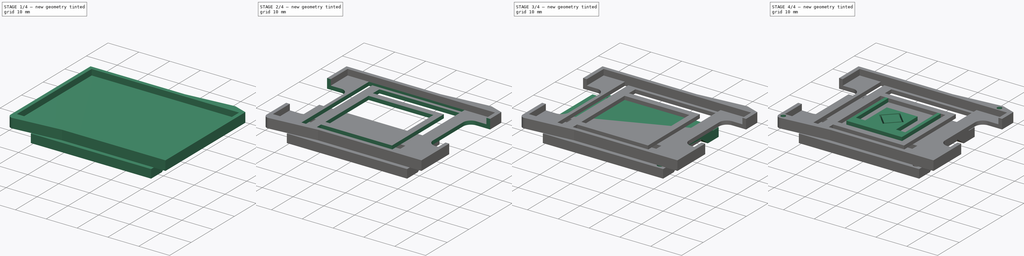
[diagram: build sequence overview — one tinted view per stage of 4, left to right]
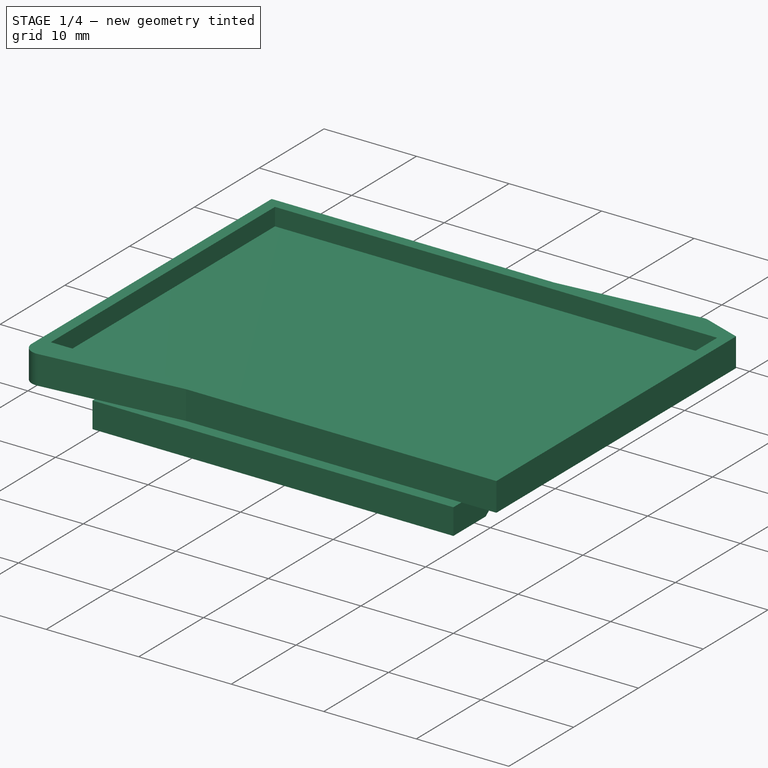
[diagram: stage 1 of 4 — iso view after this stage's code; geometry added in this stage tinted green]
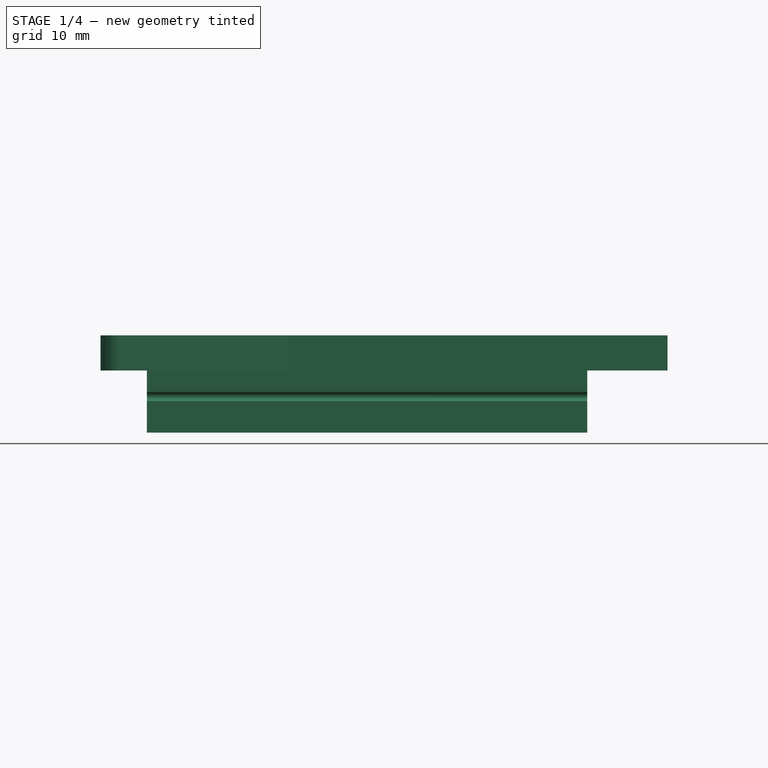
[diagram: stage 1 of 4 — front view after this stage's code; geometry added in this stage tinted green]
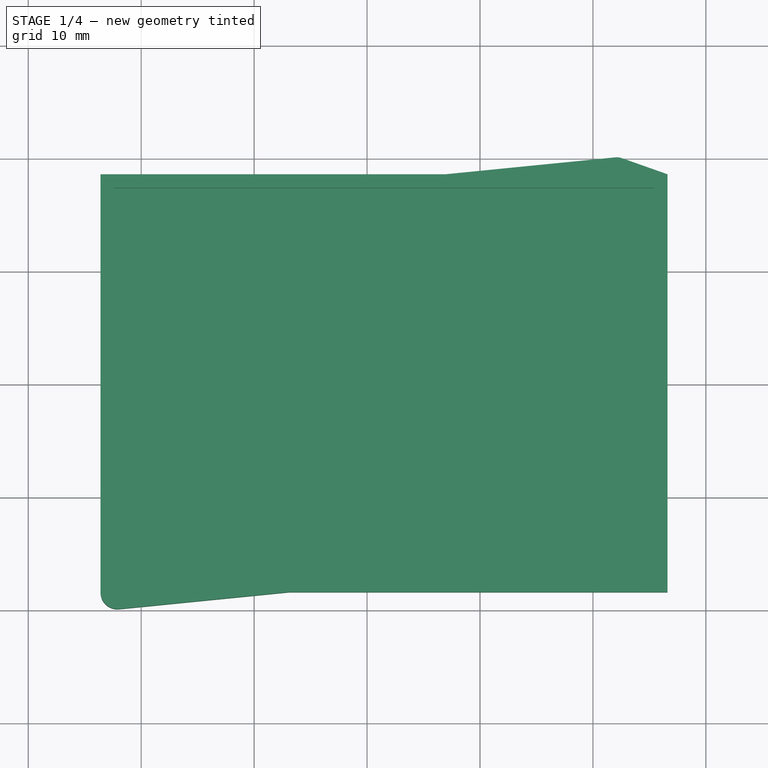
[diagram: stage 1 of 4 — top view after this stage's code; geometry added in this stage tinted green]
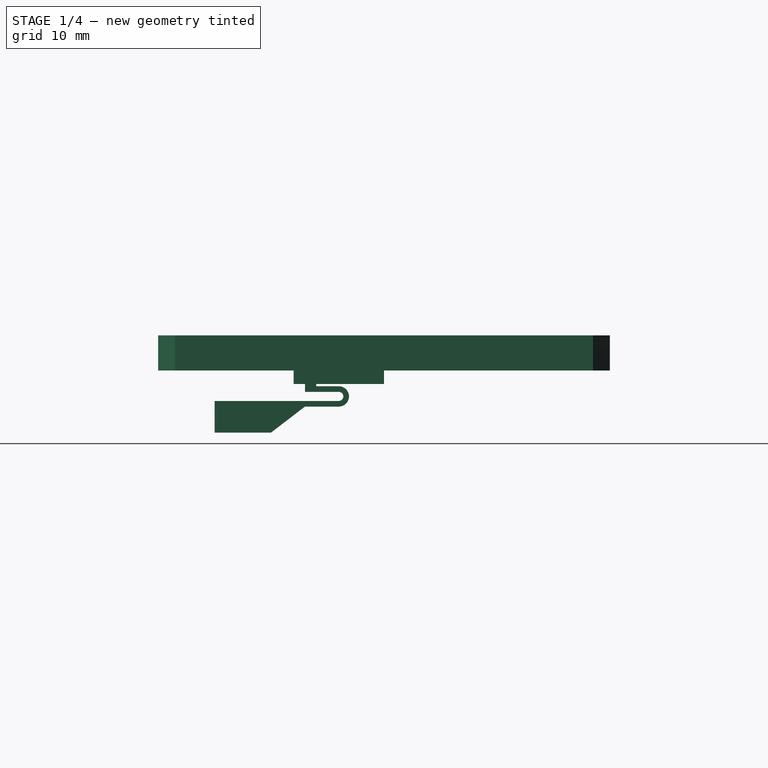
[diagram: stage 1 of 4 — right view after this stage's code; geometry added in this stage tinted green]
FCSTD DOCUMENT  (FreeCAD 0.21R33668 +26 (Git))
Label: PLASTIC-TEK1-DISPLAY-INTERFACE_v2
License: All rights reserved
LicenseURL: https://en.wikipedia.org/wiki/All_rights_reserved
objects: Sketcher::SketchObject×12, PartDesign::Pad×6, PartDesign::Pocket×5, PartDesign::Plane×3, PartDesign::Body×2, PartDesign::Mirrored×1
note: 40 computed .brp shape members not serialized (recipe doc carries the construction recipe); baked Part::Feature solids carry a one-line shape summary decoded from their .brp

FEATURE [PartDesign::Plane] DatumPlane002
  AttachmentOffset = pos=(0,0,5.5) rot=(0,0,1;0rad)
  Length = 61.7587
  MapMode = 5
  Placement = pos=(0,0,5.5) rot=(0,0,1;0rad)
  ResizeMode = 0
  Support = -> [XY_Plane001]
  Width = 60.1587
FEATURE [Sketcher::SketchObject] Sketch005
  FullyConstrained = true
  MapMode = 5
  Placement = pos=(0,0,5.5) rot=(0,0,1;0rad)
  Support = -> [DatumPlane002]
  sketch-geometry (5):
    g0: LineSegment StartX=-15.5 StartY=-17.3 StartZ=0 EndX=-15.5 EndY=17.3 EndZ=0
    g1: LineSegment StartX=-15.5 StartY=17.3 StartZ=0 EndX=15.5 EndY=17.3 EndZ=0
    g2: LineSegment StartX=15.5 StartY=17.3 StartZ=0 EndX=15.5 EndY=-17.3 EndZ=0
    g3: LineSegment StartX=15.5 StartY=-17.3 StartZ=0 EndX=-15.5 EndY=-17.3 EndZ=0
    g4: GeomPoint X=0 Y=0 Z=0
  constraints (12):
    c: Coincident(g0,g1)
    c: Coincident(g1,g2)
    c: Coincident(g2,g3)
    c: Coincident(g3,g0)
    c: Horizontal(g1)
    c: Horizontal(g3)
    c: Vertical(g0)
    c: Vertical(g2)
    c: Symmetric(g1,g0,g4)
    c: Coincident(g4,g-1)
    c: DistanceX(g1,g1) = 31
    c: DistanceY(g2,g2) = 34.6
FEATURE [Sketcher::SketchObject] Sketch007
  FullyConstrained = true
  MapMode = 5
  Placement = pos=(0,0,5.5) rot=(0,0,1;0rad)
  Support = -> [DatumPlane002]
  sketch-geometry (10):
    g0: LineSegment StartX=-23.6 StartY=-18.5 StartZ=0 EndX=-23.6 EndY=18.5 EndZ=0
    g1: LineSegment StartX=-23.6 StartY=18.5 StartZ=0 EndX=26.6 EndY=18.5 EndZ=0
    g2: LineSegment StartX=26.6 StartY=18.5 StartZ=0 EndX=26.6 EndY=-18.5 EndZ=0
    g3: LineSegment StartX=26.6 StartY=-18.5 StartZ=0 EndX=-23.6 EndY=-18.5 EndZ=0
    g4: GeomPoint X=1.5 Y=0 Z=0
    g5: LineSegment StartX=-20.4 StartY=-15.3 StartZ=0 EndX=-20.4 EndY=15.3 EndZ=0
    g6: LineSegment StartX=-20.4 StartY=15.3 StartZ=0 EndX=20.4 EndY=15.3 EndZ=0
    g7: LineSegment StartX=20.4 StartY=15.3 StartZ=0 EndX=20.4 EndY=-15.3 EndZ=0
    g8: LineSegment StartX=20.4 StartY=-15.3 StartZ=0 EndX=-20.4 EndY=-15.3 EndZ=0
    g9: GeomPoint X=0 Y=0 Z=0
  constraints (25):
    c: Coincident(g0,g1)
    c: Coincident(g1,g2)
    c: Coincident(g2,g3)
    c: Coincident(g3,g0)
    c: Horizontal(g1)
    c: Horizontal(g3)
    c: Vertical(g0)
    c: Vertical(g2)
    c: Symmetric(g1,g0,g4)
    c: PointOnObject(g4,g-1)
    c: DistanceX(g1,g1) = 50.2
    c: DistanceY(g0,g0) = 37
    c: Coincident(g5,g6)
    c: Coincident(g6,g7)
    c: Coincident(g7,g8)
    c: Coincident(g8,g5)
    c: Horizontal(g6)
    c: Horizontal(g8)
    c: Vertical(g5)
    c: Vertical(g7)
    c: Symmetric(g6,g5,g9)
    c: DistanceX(g6,g6) = 40.8
    c: DistanceY(g7,g7) = 30.6
    c: Coincident(g9,g-1)
    c: DistanceX(g0,g9) = 23.6
FEATURE [PartDesign::Pad] Pad005
  Direction = (0,0,1)
  Length = 1.2
  Length2 = 10
  Placement = pos=(0,0,5.5) rot=(0,0,1;0rad)
  Profile = -> Sketch007
  ReferenceAxis = -> Sketch007 [N_Axis]
  Type = 0
FEATURE [Sketcher::SketchObject] Sketch008
  FullyConstrained = true
  MapMode = 5
  Placement = pos=(0,0,5.5) rot=(0,0,1;0rad)
  Support = -> [DatumPlane002]
  sketch-geometry (17):
    g0: LineSegment StartX=-22.4 StartY=-17.3 StartZ=0 EndX=-22.4 EndY=17.3 EndZ=0
    g1: LineSegment StartX=-22.4 StartY=17.3 StartZ=0 EndX=25.4 EndY=17.3 EndZ=0
    g2: LineSegment StartX=25.4 StartY=17.3 StartZ=0 EndX=25.4 EndY=-17.3 EndZ=0
    g3: LineSegment StartX=25.4 StartY=-17.3 StartZ=0 EndX=-22.4 EndY=-17.3 EndZ=0
    g4: GeomPoint X=1.5 Y=0 Z=0
    g5: LineSegment StartX=-23.6 StartY=-18.5 StartZ=0 EndX=-23.6 EndY=18.5 EndZ=0
    g6: LineSegment StartX=-23.6 StartY=18.5 StartZ=0 EndX=6.95147 EndY=18.5 EndZ=0
    g7: LineSegment StartX=26.6 StartY=18.5 StartZ=0 EndX=26.6 EndY=-18.5 EndZ=0
    g8: LineSegment StartX=26.6 StartY=-18.5 StartZ=0 EndX=-6.95147 EndY=-18.5 EndZ=0
    g9: GeomPoint X=1.5 Y=0 Z=0
    g10: ArcOfCircle CenterX=-22.1 CenterY=-18.5 CenterZ=0 NormalX=0 NormalY=0 NormalZ=1 AngleXU=0 Radius=1.5 StartAngle=3.14159 EndAngle=4.81157
    g11: LineSegment StartX=-21.9515 StartY=-19.9926 StartZ=0 EndX=-6.95147 EndY=-18.5 EndZ=0
    g12: Circle CenterX=-22.1 CenterY=-18.5 CenterZ=0 NormalX=0 NormalY=0 NormalZ=1 AngleXU=0 Radius=0.75
    g13: Circle CenterX=22.1 CenterY=18.5 CenterZ=0 NormalX=0 NormalY=0 NormalZ=1 AngleXU=0 Radius=0.75
    g14: LineSegment StartX=21.9515 StartY=19.9926 StartZ=0 EndX=6.95147 EndY=18.5 EndZ=0
    g15: LineSegment StartX=22.6 StartY=19.9142 StartZ=0 EndX=26.6 EndY=18.5 EndZ=0
    g16: ArcOfCircle CenterX=22.1 CenterY=18.5 CenterZ=0 NormalX=0 NormalY=0 NormalZ=1 AngleXU=0 Radius=1.5 StartAngle=1.23096 EndAngle=1.66998
  constraints (42):
    c: Coincident(g0,g1)
    c: Coincident(g1,g2)
    c: Coincident(g2,g3)
    c: Coincident(g3,g0)
    c: Horizontal(g1)
    c: Horizontal(g3)
    c: Vertical(g0)
    c: Vertical(g2)
    c: Symmetric(g1,g0,g4)
    c: PointOnObject(g4,g-1)
    c: DistanceX(g0,g-1) = 22.4
    c: DistanceY(g0,g0) = 34.6
    c: DistanceX(g1,g1) = 47.8
    c: Coincident(g5,g6)
    c: Coincident(g7,g8)
    c: Horizontal(g6)
    c: Horizontal(g8)
    c: Vertical(g5)
    c: Coincident(g9,g4)
    c: DistanceX(g5,g0) = 1.2
    c: DistanceY(g5,g0) = 1.2
    c: Diameter(g10) = 3
    c: DistanceX(g11,g11) = 15
    c: Tangent(g10,g11) = -1.5708
    c: Coincident(g8,g11)
    c: Equal(g7,g5)
    c: Coincident(g12,g10)
    c: Diameter(g12) = 1.5
    c: Tangent(g10,g5) = 1.5708
    c: DistanceY(g7,g7) = 37
    c: DistanceX(g5,g7) = 50.2
    c: Symmetric(g7,g7,g-1)
    c: DistanceX(g-1,g13) = 22.1
    c: Equal(g13,g12)
    c: DistanceY(g1,g13) = 1.2
    c: Equal(g14,g11)
    c: Parallel(g14,g11)
    c: Coincident(g6,g14)
    c: Coincident(g15,g7)
    c: Tangent(g16,g15) = 1.5708
    c: Tangent(g16,g14) = -1.5708
    c: Coincident(g16,g13)
FEATURE [PartDesign::Pad] Pad006
  BaseFeature = -> Pad005
  Direction = (0,0,1)
  Length = 3.1
  Length2 = 10
  Placement = pos=(0,0,5.5) rot=(0,0,1;0rad)
  Profile = -> Sketch008
  ReferenceAxis = -> Sketch008 [N_Axis]
  Refine = true
  Type = 0
FEATURE [PartDesign::Body] Body001  label="PLASTIC-TEK1-DISPLAY-INTERFACE_top_part"
  Group = -> [DatumPlane002,Sketch005,Sketch007,Pad005,Sketch008,Pad006,Sketch009,Pocket001,Pocket002,Pad,Sketch023,DatumPlane,Sketch013,Sketch020,Pad015,Pocket]
  Origin = -> Origin001
  Tip = -> Pocket
FEATURE [PartDesign::Pad] Pad016
  Direction = (1,-2e-16,3e-16)
  Length = 39
  Length2 = 10
  Midplane = true
  Placement = pos=(0,0,0) rot=(1,1,1;2.0944rad)
  Profile = -> Sketch021
  ReferenceAxis = -> Sketch021 [N_Axis]
  Refine = true
  Type = 0
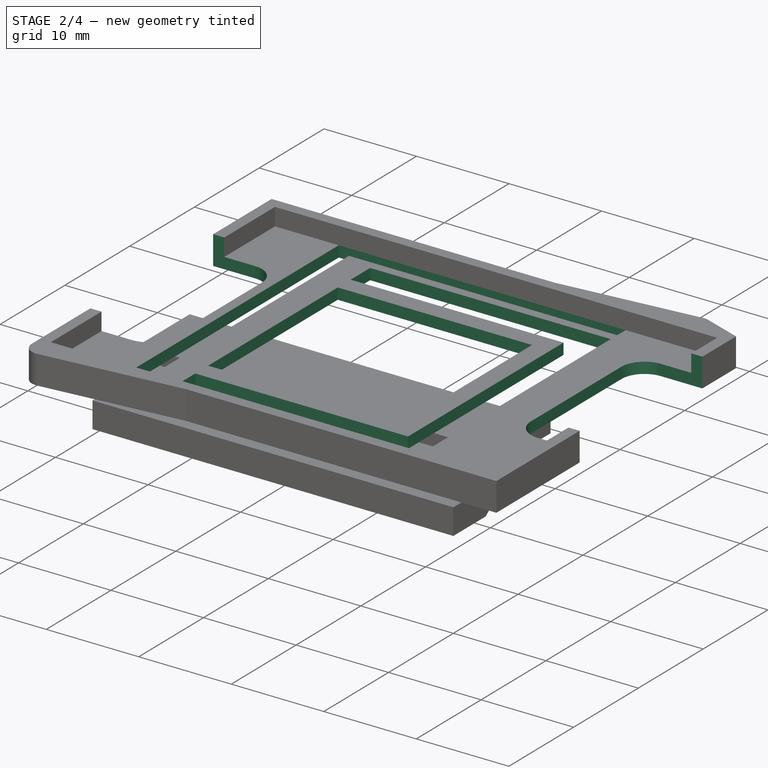
[diagram: stage 2 of 4 — iso view after this stage's code; geometry added in this stage tinted green]
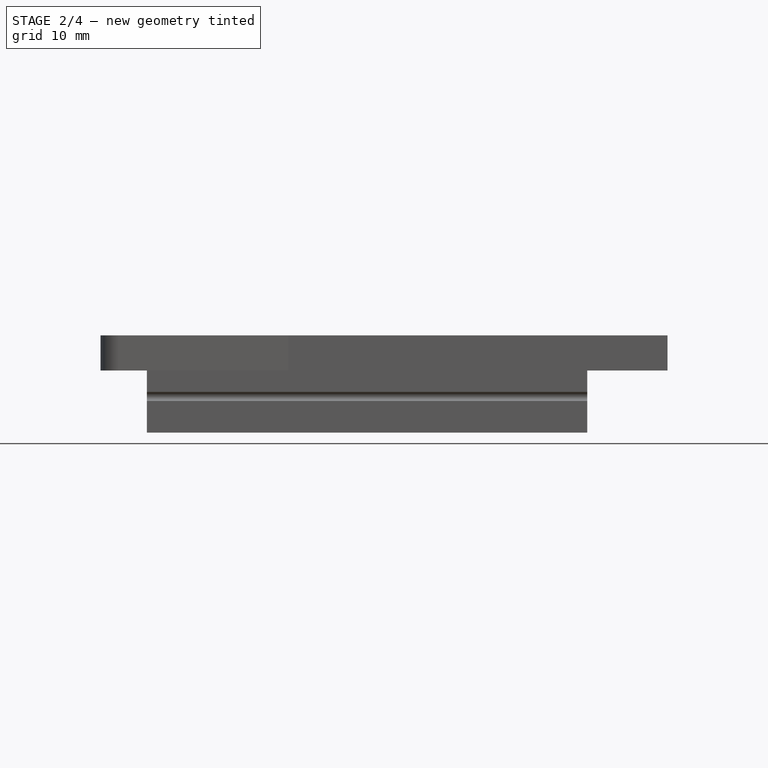
[diagram: stage 2 of 4 — front view after this stage's code; geometry added in this stage tinted green]
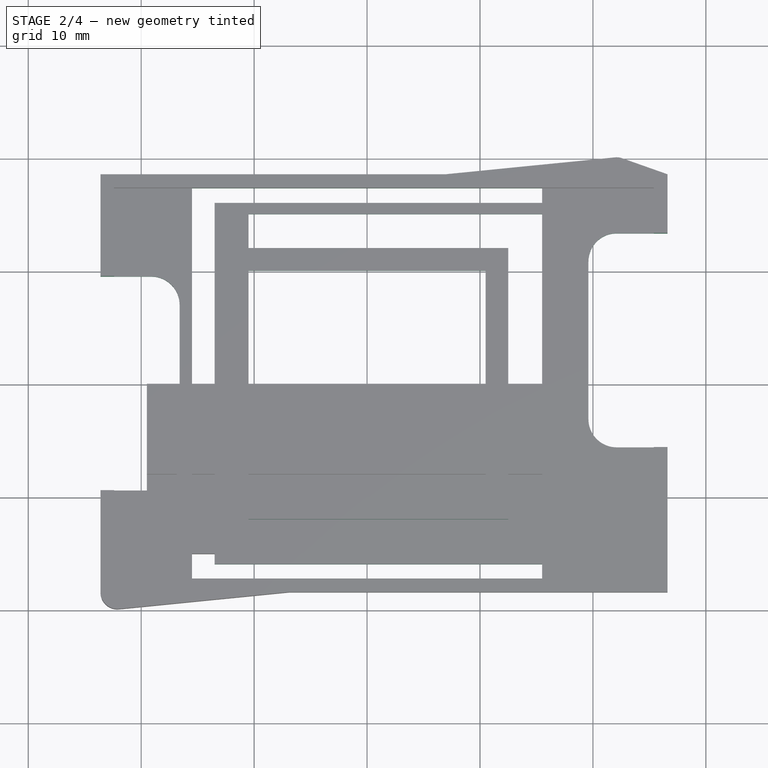
[diagram: stage 2 of 4 — top view after this stage's code; geometry added in this stage tinted green]
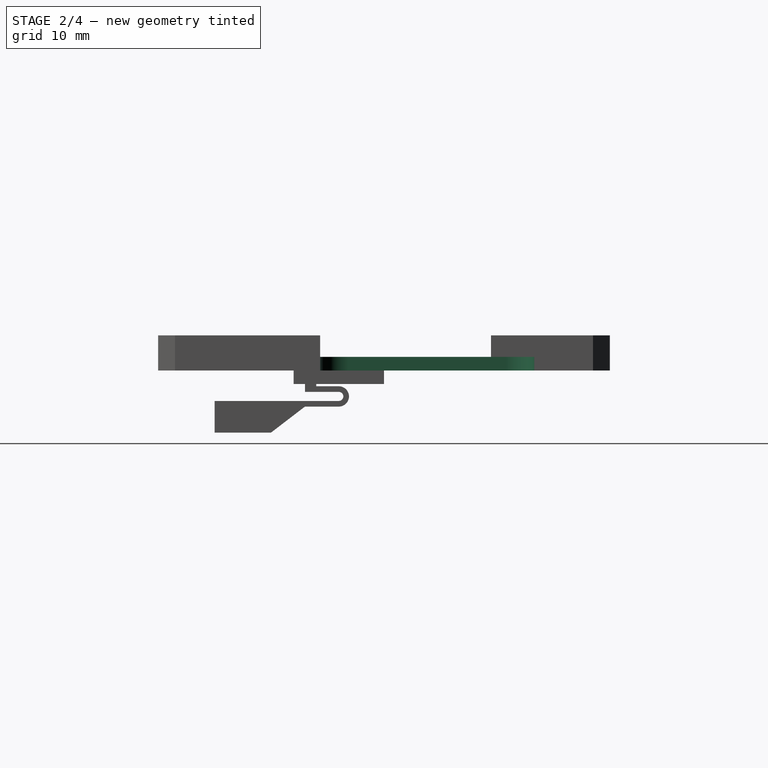
[diagram: stage 2 of 4 — right view after this stage's code; geometry added in this stage tinted green]
FEATURE [Sketcher::SketchObject] Sketch009
  FullyConstrained = true
  MapMode = 5
  Placement = pos=(0,0,5.5) rot=(0,0,1;0rad)
  Support = -> [DatumPlane002]
  sketch-geometry (13):
    g0: LineSegment StartX=19.6 StartY=-3.15 StartZ=0 EndX=19.6 EndY=10.8 EndZ=0
    g1: LineSegment StartX=22.1 StartY=13.3 StartZ=0 EndX=26.6 EndY=13.3 EndZ=0
    g2: LineSegment StartX=26.6 StartY=13.3 StartZ=0 EndX=26.6 EndY=-5.65 EndZ=0
    g3: LineSegment StartX=26.6 StartY=-5.65 StartZ=0 EndX=22.1 EndY=-5.65 EndZ=0
    g4: GeomPoint X=26.6 Y=17.3 Z=0
    g5: ArcOfCircle CenterX=22.1 CenterY=-3.15 CenterZ=0 NormalX=0 NormalY=0 NormalZ=1 AngleXU=0 Radius=2.5 StartAngle=3.14159 EndAngle=4.71239
    g6: ArcOfCircle CenterX=22.1 CenterY=10.8 CenterZ=0 NormalX=0 NormalY=0 NormalZ=1 AngleXU=0 Radius=2.5 StartAngle=1.5708 EndAngle=3.14159
    g7: LineSegment StartX=-23.6 StartY=9.475 StartZ=0 EndX=-19.1 EndY=9.475 EndZ=0
    g8: LineSegment StartX=-16.6 StartY=6.975 StartZ=0 EndX=-16.6 EndY=-6.975 EndZ=0
    g9: LineSegment StartX=-19.1 StartY=-9.475 StartZ=0 EndX=-23.6 EndY=-9.475 EndZ=0
    g10: LineSegment StartX=-23.6 StartY=-9.475 StartZ=0 EndX=-23.6 EndY=9.475 EndZ=0
    g11: ArcOfCircle CenterX=-19.1 CenterY=6.975 CenterZ=0 NormalX=0 NormalY=0 NormalZ=1 AngleXU=0 Radius=2.5 StartAngle=0 EndAngle=1.5708
    g12: ArcOfCircle CenterX=-19.1 CenterY=-6.975 CenterZ=0 NormalX=0 NormalY=0 NormalZ=1 AngleXU=0 Radius=2.5 StartAngle=4.71239 EndAngle=6.28319
  constraints (33):
    c: Coincident(g1,g2)
    c: Coincident(g2,g3)
    c: Horizontal(g1)
    c: Horizontal(g3)
    c: Vertical(g0)
    c: Vertical(g2)
    c: DistanceX(g-1,g4) = 26.6
    c: DistanceY(g-1,g4) = 17.3
    c: DistanceY(g1,g4) = 4
    c: Vertical(g1,g4)
    c: Tangent(g0,g5) = 1.5708
    c: Tangent(g3,g5) = 1.5708
    c: Tangent(g0,g6) = 1.5708
    c: Tangent(g1,g6) = 1.5708
    c: DistanceY(g3,g-1) = 5.65
    c: Equal(g5,g6)
    c: DistanceX(g0,g2) = 7
    c: Diameter(g5) = 5
    c: Coincident(g9,g10)
    c: Coincident(g10,g7)
    c: Horizontal(g7)
    c: Horizontal(g9)
    c: Vertical(g8)
    c: DistanceX(g9,g-1) = 23.6
    c: Symmetric(g9,g7,g-1)
    c: Tangent(g7,g11) = 1.5708
    c: Tangent(g8,g11) = 1.5708
    c: Tangent(g8,g12) = 1.5708
    c: Tangent(g9,g12) = 1.5708
    c: Equal(g11,g12)
    c: Diameter(g11) = 5
    c: DistanceX(g7,g8) = 7
    c: DistanceY(g10,g10) = 18.95
FEATURE [PartDesign::Pocket] Pocket001
  BaseFeature = -> Pad006
  Direction = (0,0,-1)
  Length = 5
  Length2 = 5
  Placement = pos=(0,0,5.5) rot=(0,0,1;0rad)
  Profile = -> Sketch009
  ReferenceAxis = -> Sketch009 [N_Axis]
  Reversed = true
  Type = 1
FEATURE [PartDesign::Pocket] Pocket002
  BaseFeature = -> Pocket001
  Direction = (0,0,-1)
  Length = 5
  Length2 = 5
  Placement = pos=(0,0,5.5) rot=(0,0,1;0rad)
  Profile = -> Sketch005
  ReferenceAxis = -> Sketch005 [N_Axis]
  Reversed = true
  Type = 0
FEATURE [PartDesign::Plane] DatumPlane
  AttachmentOffset = pos=(0,0,8.1) rot=(0,0,1;0rad)
  Length = 61.7587
  MapMode = 5
  Placement = pos=(0,0,8.1) rot=(0,0,1;0rad)
  ResizeMode = 0
  Support = -> [XY_Plane001]
  Width = 60.1587
FEATURE [Sketcher::SketchObject] Sketch013
  FullyConstrained = true
  MapMode = 5
  Placement = pos=(0,0,8.1) rot=(0,0,1;0rad)
  Support = -> [DatumPlane]
  sketch-geometry (4):
    g0: Circle CenterX=22.1 CenterY=18.5 CenterZ=0 NormalX=0 NormalY=0 NormalZ=1 AngleXU=0 Radius=0.75
    g1: Circle CenterX=-22.1 CenterY=-18.5 CenterZ=0 NormalX=0 NormalY=0 NormalZ=1 AngleXU=0 Radius=0.75
    g2: LineSegment StartX=-22.1 StartY=-18.5 StartZ=0 EndX=-22.1 EndY=0 EndZ=0
    g3: LineSegment StartX=22.1 StartY=18.5 StartZ=0 EndX=22.1 EndY=0 EndZ=0
  constraints (12):
    c: Diameter(g0) = 1.5
    c: Equal(g1,g0)
    c: Coincident(g2,g1)
    c: PointOnObject(g2,g-1)
    c: Vertical(g2)
    c: Coincident(g3,g0)
    c: PointOnObject(g3,g-1)
    c: Vertical(g3)
    c: Equal(g2,g3)
    c: DistanceY(g3,g3) = 18.5
    c: DistanceX(g-1,g3) = 22.1
    c: DistanceX(g2,g-1) = 22.1
FEATURE [PartDesign::Plane] DatumPlane003
  AttachmentOffset = pos=(0,0,5.5) rot=(0,0,1;0rad)
  Length = 60
  MapMode = 5
  Placement = pos=(0,0,5.5) rot=(0,0,1;0rad)
  ResizeMode = 0
  Support = -> [XY_Plane002]
  Width = 60
FEATURE [Sketcher::SketchObject] Sketch015
  FullyConstrained = true
  MapMode = 5
  Placement = pos=(0,0,0) rot=(0.57735,0.57735,0.57735;2.0944rad)
  Support = -> [YZ_Plane002]
  sketch-geometry (19):
    g0: LineSegment StartX=0 StartY=6 StartZ=0 EndX=-8 EndY=6 EndZ=0
    g1: LineSegment StartX=-8 StartY=6 StartZ=0 EndX=-8 EndY=4.8 EndZ=0
    g2: LineSegment StartX=-8 StartY=4.8 StartZ=0 EndX=-7 EndY=4.8 EndZ=0
    g3: LineSegment StartX=0 StartY=4.8 StartZ=0 EndX=0 EndY=6 EndZ=0
    g4: ArcOfCircle CenterX=-7.75 CenterY=2.5 CenterZ=0 NormalX=0 NormalY=0 NormalZ=1 AngleXU=0 Radius=0.75 StartAngle=3.14159 EndAngle=6.28319
    g5: LineSegment StartX=-7 StartY=2.5 StartZ=0 EndX=-7 EndY=4.8 EndZ=0
    g6: ArcOfCircle CenterX=-7.75 CenterY=2.5 CenterZ=0 NormalX=0 NormalY=0 NormalZ=1 AngleXU=0 Radius=1.25 StartAngle=3.14159 EndAngle=6.28319
    g7: LineSegment StartX=-6.5 StartY=2.5 StartZ=0 EndX=-6.5 EndY=4.8 EndZ=0
    g8: LineSegment StartX=-15 StartY=0 StartZ=0 EndX=-10 EndY=0 EndZ=0
    g9: LineSegment StartX=-10 StartY=0 StartZ=0 EndX=-10 EndY=2.8 EndZ=0
    g10: LineSegment StartX=-15 StartY=4 StartZ=0 EndX=-15 EndY=0 EndZ=0
    g11: LineSegment StartX=-8.5 StartY=4 StartZ=0 EndX=-8.5 EndY=2.5 EndZ=0
    g12: LineSegment StartX=-10 StartY=2.8 StartZ=0 EndX=-9 EndY=2.8 EndZ=0
    g13: LineSegment StartX=-9 StartY=2.8 StartZ=0 EndX=-9 EndY=2.5 EndZ=0
    g14: GeomPoint X=-12.5 Y=0 Z=0
    g15: LineSegment StartX=-6.5 StartY=4.8 StartZ=0 EndX=0 EndY=4.8 EndZ=0
    g16: LineSegment StartX=-15 StartY=4 StartZ=0 EndX=-10 EndY=4 EndZ=0
    g17: LineSegment StartX=-10 StartY=2.8 StartZ=0 EndX=-10 EndY=4 EndZ=0
    g18: LineSegment StartX=-10 StartY=4 StartZ=0 EndX=-8.5 EndY=4 EndZ=0
  constraints (51):
    c: Coincident(g0,g1)
    c: Coincident(g1,g2)
    c: Coincident(g15,g3)
    c: Coincident(g3,g0)
    c: Horizontal(g0)
    c: Horizontal(g2)
    c: Vertical(g1)
    c: Vertical(g3)
    c: PointOnObject(g0,g-2)
    c: Vertical(g5)
    c: Coincident(g6,g4)
    c: Vertical(g7)
    c: Coincident(g8,g9)
    c: Coincident(g10,g8)
    c: Horizontal(g8)
    c: Vertical(g9)
    c: Vertical(g10)
    c: PointOnObject(g8,g-1)
    c: Horizontal(g12)
    c: Coincident(g13,g12)
    c: Vertical(g11)
    c: Vertical(g13)
    c: Symmetric(g8,g8,g14)
    c: DistanceX(g14,g-1) = 12.5
    c: DistanceY(g-1,g0) = 6
    c: DistanceY(g1,g1) = 1.2
    c: Tangent(g4,g5) = -1.5708
    c: Tangent(g6,g7) = -1.5708
    c: Tangent(g6,g13) = -1.5708
    c: Tangent(g4,g11) = -1.5708
    c: Coincident(g9,g12)
    c: Coincident(g2,g5)
    c: Coincident(g15,g7)
    c: Coincident(g16,g10)
    c: Horizontal(g16)
    c: DistanceY(g12,g11) = 1.2
    c: Diameter(g6) = 2.5
    c: Diameter(g4) = 1.5
    c: DistanceX(g0,g0) = 8
    c: DistanceY(g10,g10) = 4
    c: DistanceX(g12,g12) = 1
    c: DistanceX(g8,g8) = 5
    c: DistanceY(g11,g11) = 1.5
    c: Horizontal(g15)
    c: Horizontal(g7,g2)
    c: Coincident(g17,g9)
    c: Vertical(g17)
    c: Coincident(g16,g17)
    c: Coincident(g18,g16)
    c: Coincident(g18,g11)
    c: Horizontal(g18)
FEATURE [Sketcher::SketchObject] Sketch018
  FullyConstrained = true
  MapMode = 5
  Placement = pos=(0,0,5.5) rot=(0,0,1;0rad)
  Support = -> [DatumPlane003]
  sketch-geometry (19):
    g0: LineSegment StartX=3.03803 StartY=-1.41169 StartZ=0 EndX=1.62635 EndY=0 EndZ=0
    g1: LineSegment StartX=-1.41169 StartY=3.03803 StartZ=0 EndX=-3.03803 EndY=1.41169 EndZ=0
    g2: LineSegment StartX=-3.03803 StartY=1.41169 StartZ=0 EndX=-1.62635 EndY=2e-16 EndZ=0
    g3: LineSegment StartX=1.41169 StartY=-3.03803 StartZ=0 EndX=3.03803 EndY=-1.41169 EndZ=0
    g4: Circle CenterX=0 CenterY=0 CenterZ=0 NormalX=0 NormalY=0 NormalZ=1 AngleXU=0 Radius=3.35
    g5: LineSegment StartX=-1.41169 StartY=-3.03803 StartZ=0 EndX=-3.03803 EndY=-1.41169 EndZ=0
    g6: LineSegment StartX=-3.03803 StartY=-1.41169 StartZ=0 EndX=-1.62635 EndY=2e-16 EndZ=0
    g7: LineSegment StartX=1.41169 StartY=3.03803 StartZ=0 EndX=3.03803 EndY=1.41169 EndZ=0
    g8: LineSegment StartX=3.03803 StartY=1.41169 StartZ=0 EndX=1.62635 EndY=0 EndZ=0
    g9: Circle CenterX=0 CenterY=0 CenterZ=0 NormalX=0 NormalY=0 NormalZ=1 AngleXU=0 Radius=3.35
    g10: LineSegment StartX=7e-16 StartY=1.62635 StartZ=0 EndX=1.41169 EndY=3.03803 EndZ=0
    g11: LineSegment StartX=7e-16 StartY=1.62635 StartZ=0 EndX=-1.41169 EndY=3.03803 EndZ=0
    g12: LineSegment StartX=6e-16 StartY=-1.62635 StartZ=0 EndX=-1.41169 EndY=-3.03803 EndZ=0
    g13: LineSegment StartX=6e-16 StartY=-1.62635 StartZ=0 EndX=1.41169 EndY=-3.03803 EndZ=0
    g14: LineSegment StartX=3.35 StartY=0 StartZ=0 EndX=4e-16 EndY=3.35 EndZ=0
    g15: LineSegment StartX=4e-16 StartY=3.35 StartZ=0 EndX=-3.35 EndY=0 EndZ=0
    g16: LineSegment StartX=-3.35 StartY=0 StartZ=0 EndX=-4e-16 EndY=-3.35 EndZ=0
    g17: LineSegment StartX=-4e-16 StartY=-3.35 StartZ=0 EndX=3.35 EndY=0 EndZ=0
    g18: Circle CenterX=0 CenterY=0 CenterZ=0 NormalX=0 NormalY=0 NormalZ=1 AngleXU=0 Radius=3.35
  constraints (54):
    c: Coincident(g11,g1)
    c: Coincident(g1,g2)
    c: Coincident(g13,g3)
    c: Coincident(g3,g0)
    c: PointOnObject(g11,g4)
    c: PointOnObject(g13,g4)
    c: Coincident(g4,g-1)
    c: Diameter(g4) = 6.7
    c: Perpendicular(g3,g2)
    c: Perpendicular(g3,g0)
    c: Perpendicular(g1,g2)
    c: PointOnObject(g1,g4)
    c: Coincident(g5,g6)
    c: Coincident(g10,g7)
    c: Coincident(g7,g8)
    c: Coincident(g12,g5)
    c: PointOnObject(g5,g9)
    c: PointOnObject(g10,g9)
    c: PointOnObject(g7,g9)
    c: PointOnObject(g12,g9)
    c: Coincident(g9,g4)
    c: Perpendicular(g8,g5)
    c: Perpendicular(g7,g8)
    c: Equal(g1,g7)
    c: Angle(g-2,g2) = 0.785398
    c: Angle(g8,g-2) = 0.785398
    c: Coincident(g11,g10)
    c: Coincident(g8,g0)
    c: Coincident(g2,g6)
    c: Coincident(g13,g12)
    c: Equal(g10,g11)
    c: Equal(g11,g13)
    c: Equal(g13,g12)
    c: Equal(g12,g6)
    c: Equal(g6,g2)
    c: Equal(g2,g0)
    c: Equal(g0,g8)
    c: Perpendicular(g1,g11)
    c: Perpendicular(g7,g10)
    c: Distance(g7) = 2.3
    c: Coincident(g14,g15)
    c: Coincident(g15,g16)
    c: Coincident(g16,g17)
    c: Coincident(g17,g14)
    c: Equal(g14,g15)
    c: Equal(g14,g16)
    c: Equal(g14,g17)
    c: PointOnObject(g14,g18)
    c: PointOnObject(g15,g18)
    c: PointOnObject(g16,g18)
    c: PointOnObject(g17,g18)
    c: Coincident(g18,g4)
    c: PointOnObject(g17,g4)
    c: PointOnObject(g14,g-1)
FEATURE [Sketcher::SketchObject] Sketch020
  FullyConstrained = true
  MapMode = 5
  Placement = pos=(0,0,5.5) rot=(0,0,1;0rad)
  Support = -> [DatumPlane002]
  sketch-geometry (32):
    g0: LineSegment StartX=-5 StartY=-5 StartZ=0 EndX=-5 EndY=5 EndZ=0
    g1: LineSegment StartX=-5 StartY=5 StartZ=0 EndX=5 EndY=5 EndZ=0
    g2: LineSegment StartX=5 StartY=5 StartZ=0 EndX=5 EndY=-5 EndZ=0
    g3: GeomPoint X=0 Y=0 Z=0
    g4: LineSegment StartX=3.68268 StartY=1.56136 StartZ=0 EndX=1.56136 EndY=3.68268 EndZ=0
    g5: LineSegment StartX=1.56136 StartY=3.68268 StartZ=0 EndX=0 EndY=2.12132 EndZ=0
    g6: LineSegment StartX=-3.68268 StartY=-1.56136 StartZ=0 EndX=-1.56136 EndY=-3.68268 EndZ=0
    g7: LineSegment StartX=-1.56136 StartY=-3.68268 StartZ=0 EndX=0 EndY=-2.12132 EndZ=0
    g8: Circle CenterX=0 CenterY=0 CenterZ=0 NormalX=0 NormalY=0 NormalZ=1 AngleXU=0 Radius=4
    g9: LineSegment StartX=-1.56136 StartY=3.68268 StartZ=0 EndX=-3.68268 EndY=1.56136 EndZ=0
    g10: LineSegment StartX=-3.68268 StartY=1.56136 StartZ=0 EndX=-2.12132 EndY=0 EndZ=0
    g11: LineSegment StartX=1.56136 StartY=-3.68268 StartZ=0 EndX=3.68268 EndY=-1.56136 EndZ=0
    g12: LineSegment StartX=3.68268 StartY=-1.56136 StartZ=0 EndX=2.12132 EndY=0 EndZ=0
    g13: Circle CenterX=0 CenterY=0 CenterZ=0 NormalX=0 NormalY=0 NormalZ=1 AngleXU=0 Radius=4
    g14: LineSegment StartX=8 StartY=-5 StartZ=0 EndX=5 EndY=-5 EndZ=0
    g15: LineSegment StartX=-8 StartY=-5 StartZ=0 EndX=-5 EndY=-5 EndZ=0
    g16: LineSegment StartX=-9 StartY=10 StartZ=0 EndX=-8 EndY=10 EndZ=0
    g17: LineSegment StartX=-8 StartY=10 StartZ=0 EndX=-8 EndY=-5 EndZ=0
    g18: LineSegment StartX=-9 StartY=-8 StartZ=0 EndX=-9 EndY=10 EndZ=0
    g19: LineSegment StartX=9 StartY=10 StartZ=0 EndX=8 EndY=10 EndZ=0
    g20: LineSegment StartX=8 StartY=10 StartZ=0 EndX=8 EndY=-5 EndZ=0
    g21: LineSegment StartX=9 StartY=-8 StartZ=0 EndX=9 EndY=10 EndZ=0
    g22: LineSegment StartX=-2.12132 StartY=0 StartZ=0 EndX=-3.68268 EndY=-1.56136 EndZ=0
    g23: LineSegment StartX=0 StartY=-2.12132 StartZ=0 EndX=1.56136 EndY=-3.68268 EndZ=0
    g24: LineSegment StartX=2.12132 StartY=0 StartZ=0 EndX=3.68268 EndY=1.56136 EndZ=0
    g25: LineSegment StartX=0 StartY=2.12132 StartZ=0 EndX=-1.56136 EndY=3.68268 EndZ=0
    g26: LineSegment StartX=-9 StartY=-8 StartZ=0 EndX=9 EndY=-8 EndZ=0
    g27: LineSegment StartX=4 StartY=0 StartZ=0 EndX=-9e-16 EndY=4 EndZ=0
    g28: LineSegment StartX=-5e-16 StartY=4 StartZ=0 EndX=-4 EndY=-9e-16 EndZ=0
    g29: LineSegment StartX=-4 StartY=-9e-16 StartZ=0 EndX=0 EndY=-4 EndZ=0
    g30: LineSegment StartX=0 StartY=-4 StartZ=0 EndX=4 EndY=0 EndZ=0
    g31: Circle CenterX=0 CenterY=0 CenterZ=0 NormalX=0 NormalY=0 NormalZ=1 AngleXU=0 Radius=4
  constraints (88):
    c: Coincident(g0,g1)
    c: Coincident(g1,g2)
    c: Vertical(g0)
    c: Coincident(g3,g-1)
    c: Coincident(g4,g5)
    c: Coincident(g22,g6)
    c: Coincident(g6,g7)
    c: Coincident(g24,g4)
    c: PointOnObject(g4,g8)
    c: PointOnObject(g22,g8)
    c: PointOnObject(g6,g8)
    c: PointOnObject(g24,g8)
    c: Coincident(g8,g3)
    c: Coincident(g9,g10)
    c: Coincident(g23,g11)
    c: Coincident(g11,g12)
    c: Coincident(g25,g9)
    c: PointOnObject(g9,g13)
    c: PointOnObject(g23,g13)
    c: PointOnObject(g11,g13)
    c: PointOnObject(g25,g13)
    c: Coincident(g13,g3)
    c: Horizontal(g14)
    c: Horizontal(g15)
    c: Coincident(g16,g17)
    c: Coincident(g18,g16)
    c: Horizontal(g16)
    c: Vertical(g17)
    c: Vertical(g18)
    c: Coincident(g19,g20)
    c: Coincident(g21,g19)
    c: Horizontal(g19)
    c: Vertical(g20)
    c: Vertical(g21)
    c: Equal(g16,g19)
    c: Perpendicular(g12,g11)
    c: Perpendicular(g9,g12)
    c: Perpendicular(g7,g6)
    c: Perpendicular(g6,g5)
    c: Equal(g11,g6)
    c: Angle(g5,g-2) = 0.785398
    c: Angle(g-2,g12) = 0.785398
    c: Diameter(g8) = 8
    c: Distance(g11) = 3
    c: Coincident(g10,g22)
    c: Coincident(g7,g23)
    c: Coincident(g12,g24)
    c: Coincident(g25,g5)
    c: PointOnObject(g12,g-1)
    c: PointOnObject(g5,g-2)
    c: PointOnObject(g10,g-1)
    c: PointOnObject(g7,g-2)
    c: Perpendicular(g9,g10)
    c: Equal(g10,g23)
    c: Equal(g12,g25)
    c: Equal(g12,g24)
    c: PointOnObject(g4,g13)
    c: DistanceX(g19,g19) = 1
    c: Coincident(g14,g20)
    c: Coincident(g14,g2)
    c: Coincident(g15,g17)
    c: Coincident(g15,g0)
    c: Symmetric(g1,g0,g-2)
    c: Symmetric(g16,g19,g-2)
    c: Coincident(g26,g18)
    c: Coincident(g26,g21)
    c: Horizontal(g26)
    c: DistanceX(g1,g1) = 10
    c: DistanceY(g21,g14) = 3
    c: DistanceY(g3,g19) = 10
    c: Horizontal(g2,g0)
    c: DistanceY(g2,g2) = 10
    c: Symmetric(g2,g1,g-1)
    c: DistanceX(g14,g14) = 3
    c: Coincident(g27,g28)
    c: Coincident(g28,g29)
    c: Coincident(g29,g30)
    c: Coincident(g30,g27)
    c: Equal(g27,g28)
    c: Equal(g27,g29)
    c: Equal(g27,g30)
    c: PointOnObject(g27,g31)
    c: PointOnObject(g28,g31)
    c: PointOnObject(g29,g31)
    c: PointOnObject(g30,g31)
    c: Coincident(g31,g3)
    c: PointOnObject(g30,g8)
    c: PointOnObject(g27,g-1)
FEATURE [Sketcher::SketchObject] Sketch021
  FullyConstrained = false
  MapMode = 5
  Placement = pos=(0,0,0) rot=(0.57735,0.57735,0.57735;2.0944rad)
  Support = -> [YZ_Plane002]
  sketch-geometry (37):
    g0: LineSegment StartX=0 StartY=5.5 StartZ=0 EndX=-8 EndY=5.5 EndZ=0
    g1: LineSegment StartX=-8 StartY=5.5 StartZ=0 EndX=-8 EndY=4.3 EndZ=0
    g2: LineSegment StartX=-8 StartY=4.3 StartZ=0 EndX=-7 EndY=4.3 EndZ=0
    g3: LineSegment StartX=0 StartY=4.3 StartZ=0 EndX=0 EndY=5.5 EndZ=0
    g4: ArcOfCircle CenterX=-7.5 CenterY=1.3 CenterZ=0 NormalX=0 NormalY=0 NormalZ=1 AngleXU=0 Radius=0.5 StartAngle=3.14159 EndAngle=6.28319
    g5: LineSegment StartX=-7 StartY=1.3 StartZ=0 EndX=-7 EndY=4.3 EndZ=0
    g6: ArcOfCircle CenterX=-7.5 CenterY=1.3 CenterZ=0 NormalX=0 NormalY=0 NormalZ=1 AngleXU=0 Radius=1.5 StartAngle=3.14159 EndAngle=6.28319
    g7: LineSegment StartX=-6 StartY=1.3 StartZ=0 EndX=-6 EndY=4.3 EndZ=0
    g8: LineSegment StartX=-15 StartY=0 StartZ=0 EndX=-10 EndY=0 EndZ=0
    g9: LineSegment StartX=-10 StartY=0 StartZ=0 EndX=-10 EndY=1.6 EndZ=0
    g10: LineSegment StartX=-15 StartY=2.8 StartZ=0 EndX=-15 EndY=0 EndZ=0
    g11: LineSegment StartX=-8 StartY=2.8 StartZ=0 EndX=-8 EndY=1.3 EndZ=0
    g12: LineSegment StartX=-10 StartY=1.6 StartZ=0 EndX=-9 EndY=1.6 EndZ=0
    g13: LineSegment StartX=-9 StartY=1.6 StartZ=0 EndX=-9 EndY=1.3 EndZ=0
    g14: GeomPoint X=-12.5 Y=0 Z=0
    g15: LineSegment StartX=-5.65359 StartY=4.3 StartZ=0 EndX=0 EndY=4.3 EndZ=0
    g16: LineSegment StartX=-15 StartY=2.8 StartZ=0 EndX=-10 EndY=2.8 EndZ=0
    g17: LineSegment StartX=-10 StartY=1.6 StartZ=0 EndX=-10 EndY=2.8 EndZ=0
    g18: LineSegment StartX=-10 StartY=2.8 StartZ=0 EndX=-8 EndY=2.8 EndZ=0
    g19: LineSegment StartX=-8 StartY=2.8 StartZ=0 EndX=-7.43301 EndY=1.81795 EndZ=0
    g20: LineSegment StartX=-7.43301 StartY=1.81795 StartZ=0 EndX=-6 EndY=4.3 EndZ=0
    g21: LineSegment StartX=-7 StartY=4.3 StartZ=0 EndX=-6 EndY=4.3 EndZ=0
    g22: LineSegment StartX=-8 StartY=2.2 StartZ=0 EndX=-7.43301 EndY=1.21795 EndZ=0
    g23: LineSegment StartX=-7.43301 StartY=1.21795 StartZ=0 EndX=-5.65359 EndY=4.3 EndZ=0
    g24: LineSegment StartX=-10 StartY=1.6 StartZ=0 EndX=-8 EndY=2.2 EndZ=0
    g25: LineSegment StartX=-7.98668 StartY=2.77692 StartZ=0 EndX=-8.24649 EndY=2.62692 EndZ=0
    g26: LineSegment StartX=-6.62813 StartY=3.21206 StartZ=0 EndX=-6.36832 EndY=3.06206 EndZ=0
    g27: LineSegment StartX=-5.65359 StartY=4.3 StartZ=0 EndX=-6 EndY=4.3 EndZ=0
    g28: ArcOfCircle CenterX=-4 CenterY=3.2 CenterZ=0 NormalX=0 NormalY=0 NormalZ=1 AngleXU=0 Radius=0.4 StartAngle=4.71239 EndAngle=7.85398
    g29: LineSegment StartX=-10 StartY=2.8 StartZ=0 EndX=-4 EndY=2.8 EndZ=0
    g30: LineSegment StartX=-4 StartY=3.6 StartZ=0 EndX=-7 EndY=3.6 EndZ=0
    g31: LineSegment StartX=-7 StartY=3.6 StartZ=0 EndX=-7 EndY=4.3 EndZ=0
    g32: LineSegment StartX=-4 StartY=4.1 StartZ=0 EndX=-6 EndY=4.1 EndZ=0
    g33: LineSegment StartX=-6 StartY=4.1 StartZ=0 EndX=-6 EndY=4.3 EndZ=0
    g34: ArcOfCircle CenterX=-4 CenterY=3.2 CenterZ=0 NormalX=0 NormalY=0 NormalZ=1 AngleXU=0 Radius=0.9 StartAngle=4.71239 EndAngle=7.85398
    g35: LineSegment StartX=-10 StartY=0 StartZ=0 EndX=-7 EndY=2.3 EndZ=0
    g36: LineSegment StartX=-7 StartY=2.3 StartZ=0 EndX=-4 EndY=2.3 EndZ=0
  constraints (98):
    c: Coincident(g0,g1)
    c: Coincident(g1,g2)
    c: Coincident(g15,g3)
    c: Coincident(g3,g0)
    c: Horizontal(g0)
    c: Horizontal(g2)
    c: Vertical(g1)
    c: Vertical(g3)
    c: PointOnObject(g0,g-2)
    c: Vertical(g5)
    c: Coincident(g6,g4)
    c: Vertical(g7)
    c: Coincident(g8,g9)
    c: Coincident(g10,g8)
    c: Horizontal(g8)
    c: Vertical(g9)
    c: Vertical(g10)
    c: PointOnObject(g8,g-1)
    c: Horizontal(g12)
    c: Coincident(g13,g12)
    c: Vertical(g11)
    c: Vertical(g13)
    c: Symmetric(g8,g8,g14)
    c: DistanceX(g14,g-1) = 12.5
    c: DistanceY(g-1,g0) = 5.5
    c: DistanceY(g1,g1) = 1.2
    c: Tangent(g4,g5) = -1.5708
    c: Tangent(g6,g7) = -1.5708
    c: Tangent(g6,g13) = -1.5708
    c: Tangent(g4,g11) = -1.5708
    c: Coincident(g9,g12)
    c: Coincident(g2,g5)
    c: Coincident(g16,g10)
    c: Horizontal(g16)
    c: DistanceY(g12,g11) = 1.2
    c: Diameter(g6) = 3
    c: Diameter(g4) = 1
    c: DistanceX(g0,g0) = 8
    c: DistanceY(g10,g10) = 2.8
    c: DistanceX(g12,g12) = 1
    c: DistanceX(g8,g8) = 5
    c: DistanceY(g11,g11) = 1.5
    c: Horizontal(g15)
    c: Horizontal(g7,g2)
    c: Coincident(g17,g9)
    c: Vertical(g17)
    c: Coincident(g16,g17)
    c: Coincident(g18,g16)
    c: Coincident(g18,g11)
    c: Horizontal(g18)
    c: Coincident(g19,g18)
    c: Coincident(g20,g19)
    c: Coincident(g20,g7)
    c: Coincident(g21,g2)
    c: Coincident(g21,g7)
    c: PointOnObject(g22,g11)
    c: Coincident(g23,g22)
    c: Coincident(g15,g23)
    c: Horizontal(g15,g20)
    c: Parallel(g20,g23)
    c: Parallel(g19,g22)
    c: Coincident(g24,g17)
    c: Coincident(g24,g22)
    c: PointOnObject(g25,g19)
    c: PointOnObject(g25,g22)
    c: PointOnObject(g26,g20)
    c: PointOnObject(g26,g23)
    c: Perpendicular(g20,g26)
    c: Perpendicular(g19,g25)
    c: Equal(g26,g25)
    c: Distance(g26) = 0.3
    c: Angle(g18,g19) = 2.0944
    c: Angle(g23,g15) = 2.0944
    c: Coincident(g27,g15)
    c: Coincident(g27,g7)
    c: Coincident(g29,g16)
    c: Horizontal(g29)
    c: PointOnObject(g30,g5)
    c: Horizontal(g30)
    c: Coincident(g31,g30)
    c: Coincident(g31,g2)
    c: PointOnObject(g32,g7)
    c: Horizontal(g32)
    c: Coincident(g33,g32)
    c: Coincident(g33,g27)
    c: Tangent(g28,g29) = -1.5708
    c: Tangent(g28,g30) = -1.5708
    c: Tangent(g32,g34) = -1.5708
    c: Diameter(g28) = 0.8
    c: Diameter(g34) = 1.8
    c: Coincident(g34,g28)
    c: Coincident(g35,g8)
    c: Horizontal(g36)
    c: Coincident(g35,g36)
    c: Tangent(g34,g36) = -1.5708
    c: DistanceX(g30,g30) = 3
    c: DistanceX(g36,g36) = 3
    c: DistanceY(g-1,g3) = 4.3
FEATURE [Sketcher::SketchObject] Sketch
  FullyConstrained = true
  MapMode = 5
  Support = -> [XY_Plane002]
  sketch-geometry (4):
    g0: Circle CenterX=-17.5 CenterY=13.34 CenterZ=0 NormalX=0 NormalY=0 NormalZ=1 AngleXU=0 Radius=1
    g1: Circle CenterX=-17.5 CenterY=-13.34 CenterZ=0 NormalX=0 NormalY=0 NormalZ=1 AngleXU=0 Radius=1
    g2: Circle CenterX=17.5 CenterY=13.34 CenterZ=0 NormalX=0 NormalY=0 NormalZ=1 AngleXU=0 Radius=1
    g3: Circle CenterX=17.5 CenterY=-13.34 CenterZ=0 NormalX=0 NormalY=0 NormalZ=1 AngleXU=0 Radius=1
  constraints (10):
    c: Vertical(g2,g3)
    c: Horizontal(g3,g1)
    c: Symmetric(g2,g0,g-2)
    c: Symmetric(g0,g1,g-1)
    c: Equal(g0,g2)
    c: Equal(g2,g3)
    c: Equal(g3,g1)
    c: Diameter(g0) = 2
    c: DistanceX(g0,g2) = 35
    c: DistanceY(g1,g0) = 26.68
FEATURE [Sketcher::SketchObject] Sketch022
  FullyConstrained = false
  MapMode = 5
  Support = -> [XY_Plane002]
  sketch-geometry (4):
    g0: LineSegment StartX=16.5 StartY=16.3941 StartZ=0 EndX=29.4445 EndY=16.3941 EndZ=0
    g1: LineSegment StartX=29.4445 StartY=16.3941 StartZ=0 EndX=29.4445 EndY=2.67368 EndZ=0
    g2: LineSegment StartX=29.4445 StartY=2.67368 StartZ=0 EndX=16.5 EndY=2.67368 EndZ=0
    g3: LineSegment StartX=16.5 StartY=2.67368 StartZ=0 EndX=16.5 EndY=16.3941 EndZ=0
  constraints (9):
    c: Coincident(g0,g1)
    c: Coincident(g1,g2)
    c: Coincident(g2,g3)
    c: Coincident(g3,g0)
    c: Horizontal(g0)
    c: Horizontal(g2)
    c: Vertical(g1)
    c: Vertical(g3)
    c: DistanceX(g-1,g2) = 16.5
FEATURE [Sketcher::SketchObject] Sketch023
  FullyConstrained = true
  MapMode = 5
  Placement = pos=(0,0,5.5) rot=(0,0,1;0rad)
  Support = -> [DatumPlane002]
  sketch-geometry (24):
    g0: LineSegment StartX=-13.5 StartY=-16 StartZ=0 EndX=-13.5 EndY=16 EndZ=0
    g1: LineSegment StartX=-13.5 StartY=16 StartZ=0 EndX=-10.5 EndY=16 EndZ=0
    g2: LineSegment StartX=-10.5 StartY=-16 StartZ=0 EndX=-13.5 EndY=-16 EndZ=0
    g3: GeomPoint X=-12 Y=0 Z=0
    g4: LineSegment StartX=-10.5 StartY=-16 StartZ=0 EndX=15.5 EndY=-16 EndZ=0
    g5: LineSegment StartX=15.5 StartY=-16 StartZ=0 EndX=15.5 EndY=-15 EndZ=0
    g6: LineSegment StartX=15.5 StartY=-15 StartZ=0 EndX=-10.5 EndY=-15 EndZ=0
    g7: LineSegment StartX=-10.5 StartY=15 StartZ=0 EndX=15.5 EndY=15 EndZ=0
    g8: LineSegment StartX=15.5 StartY=15 StartZ=0 EndX=15.5 EndY=16 EndZ=0
    g9: LineSegment StartX=15.5 StartY=16 StartZ=0 EndX=-10.5 EndY=16 EndZ=0
    g10: LineSegment StartX=-10.5 StartY=-12 StartZ=0 EndX=12.5 EndY=-12 EndZ=0
    g11: LineSegment StartX=12.5 StartY=-12 StartZ=0 EndX=12.5 EndY=12 EndZ=0
    g12: LineSegment StartX=12.5 StartY=12 StartZ=0 EndX=-10.5 EndY=12 EndZ=0
    g13: LineSegment StartX=-10.5 StartY=10 StartZ=0 EndX=-10.5 EndY=-10 EndZ=0
    g14: LineSegment StartX=-10.5 StartY=-10 StartZ=0 EndX=10.5 EndY=-10 EndZ=0
    g15: LineSegment StartX=10.5 StartY=-10 StartZ=0 EndX=10.5 EndY=10 EndZ=0
    g16: LineSegment StartX=10.5 StartY=10 StartZ=0 EndX=-10.5 EndY=10 EndZ=0
    g17: LineSegment StartX=-15.5 StartY=-17.5 StartZ=0 EndX=-15.5 EndY=17.5 EndZ=0
    g18: LineSegment StartX=-15.5 StartY=17.5 StartZ=0 EndX=15.5 EndY=17.5 EndZ=0
    g19: LineSegment StartX=15.5 StartY=17.5 StartZ=0 EndX=15.5 EndY=-17.5 EndZ=0
    g20: LineSegment StartX=15.5 StartY=-17.5 StartZ=0 EndX=-15.5 EndY=-17.5 EndZ=0
    g21: GeomPoint X=0 Y=0 Z=0
    g22: LineSegment StartX=-10.5 StartY=-12 StartZ=0 EndX=-10.5 EndY=-15 EndZ=0
    g23: LineSegment StartX=-10.5 StartY=15 StartZ=0 EndX=-10.5 EndY=12 EndZ=0
  constraints (65):
    c: Coincident(g0,g1)
    c: Coincident(g2,g0)
    c: Horizontal(g1)
    c: Horizontal(g2)
    c: Vertical(g0)
    c: Symmetric(g1,g0,g3)
    c: PointOnObject(g3,g-1)
    c: Coincident(g4,g5)
    c: Coincident(g5,g6)
    c: Horizontal(g4)
    c: Horizontal(g6)
    c: Vertical(g5)
    c: Coincident(g7,g8)
    c: Coincident(g8,g9)
    c: Horizontal(g7)
    c: Horizontal(g9)
    c: Vertical(g8)
    c: Coincident(g10,g11)
    c: Coincident(g11,g12)
    c: Horizontal(g10)
    c: Horizontal(g12)
    c: Vertical(g13)
    c: Coincident(g14,g15)
    c: Coincident(g15,g16)
    c: Horizontal(g14)
    c: Horizontal(g16)
    c: DistanceX(g1,g1) = 3
    c: Coincident(g17,g18)
    c: Coincident(g18,g19)
    c: Coincident(g19,g20)
    c: Coincident(g20,g17)
    c: Horizontal(g18)
    c: Horizontal(g20)
    c: Vertical(g17)
    c: Vertical(g19)
    c: Symmetric(g18,g17,g21)
    c: Coincident(g21,g-1)
    c: DistanceY(g17,g17) = 35
    c: DistanceX(g18,g18) = 31
    c: PointOnObject(g8,g19)
    c: PointOnObject(g4,g19)
    c: Equal(g5,g8)
    c: Coincident(g22,g10)
    c: Coincident(g23,g7)
    c: Symmetric(g15,g14,g-1)
    c: Symmetric(g10,g11,g-1)
    c: Coincident(g13,g16)
    c: Coincident(g13,g14)
    c: DistanceY(g8,g8) = 1
    c: Coincident(g4,g2)
    c: Coincident(g9,g1)
    c: Vertical(g10,g13)
    c: Coincident(g12,g23)
    c: Vertical(g23)
    c: Vertical(g13,g12)
    c: Vertical(g7,g1)
    c: Vertical(g22)
    c: Coincident(g22,g6)
    c: Vertical(g6,g2)
    c: DistanceY(g13,g13) = 20
    c: DistanceY(g13,g12) = 2
    c: DistanceX(g15,g11) = 2
    c: DistanceX(g16,g16) = 21
    c: DistanceX(g0,g4) = 29
    c: DistanceY(g11,g7) = 3
FEATURE [PartDesign::Pad] Pad
  BaseFeature = -> Pocket002
  Direction = (0,0,1)
  Length = 10
  Length2 = 10
  Placement = pos=(0,0,5.5) rot=(0,0,1;0rad)
  Profile = -> Sketch023
  ReferenceAxis = -> Sketch023 [N_Axis]
  Refine = true
  Type = 3
  UpToFace = -> Pocket002 [Face33]
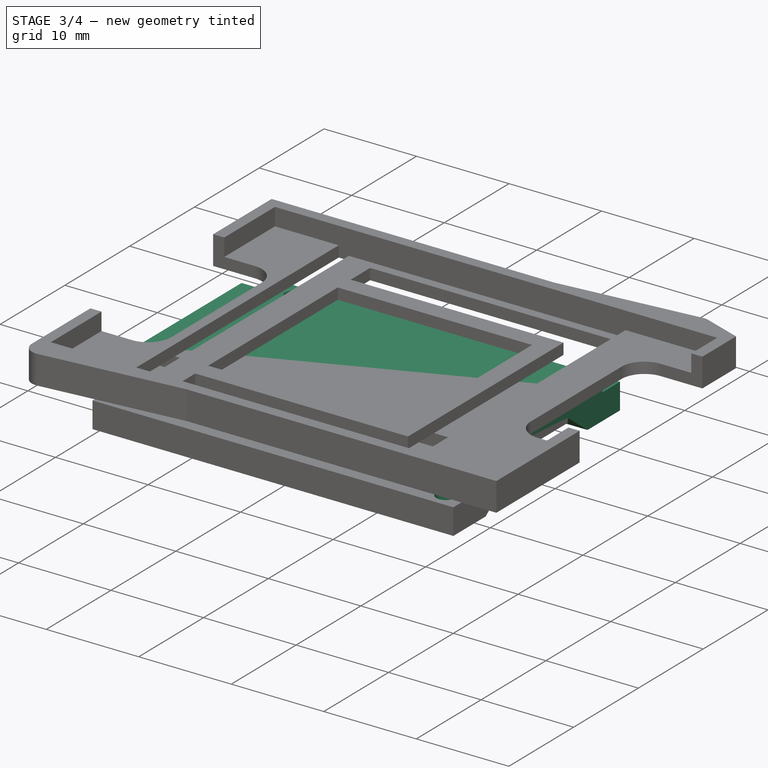
[diagram: stage 3 of 4 — iso view after this stage's code; geometry added in this stage tinted green]
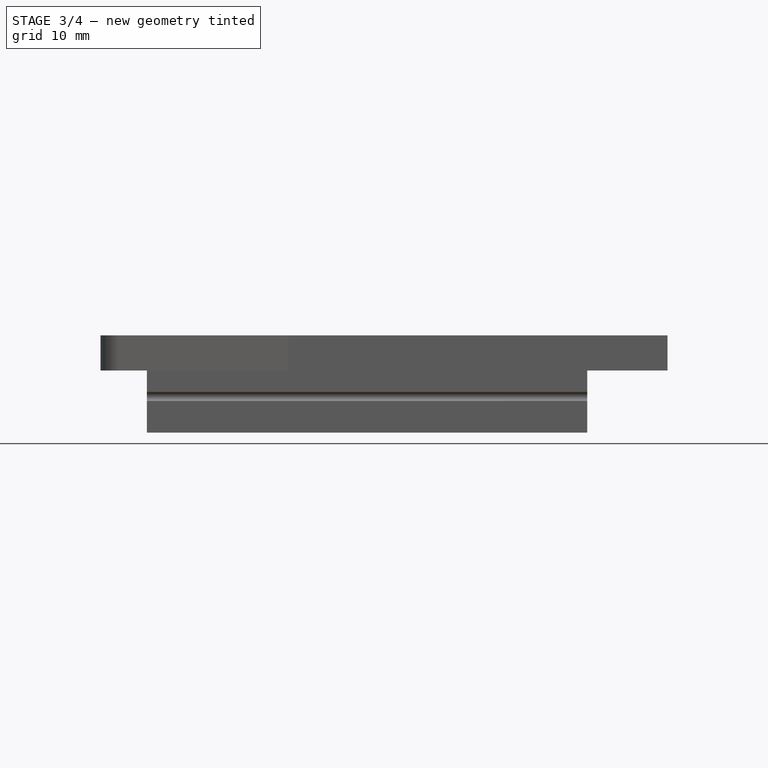
[diagram: stage 3 of 4 — front view after this stage's code; geometry added in this stage tinted green]
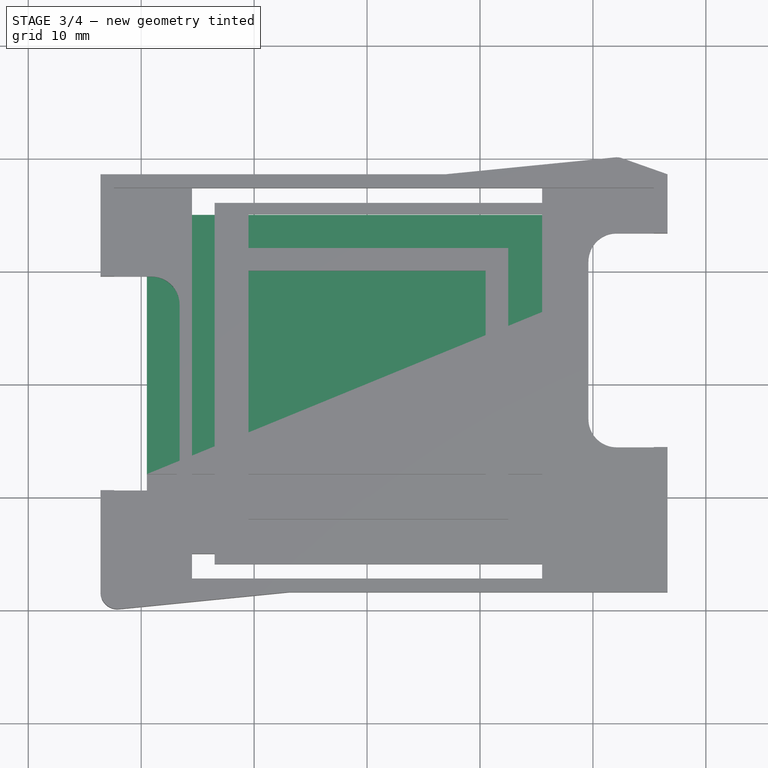
[diagram: stage 3 of 4 — top view after this stage's code; geometry added in this stage tinted green]
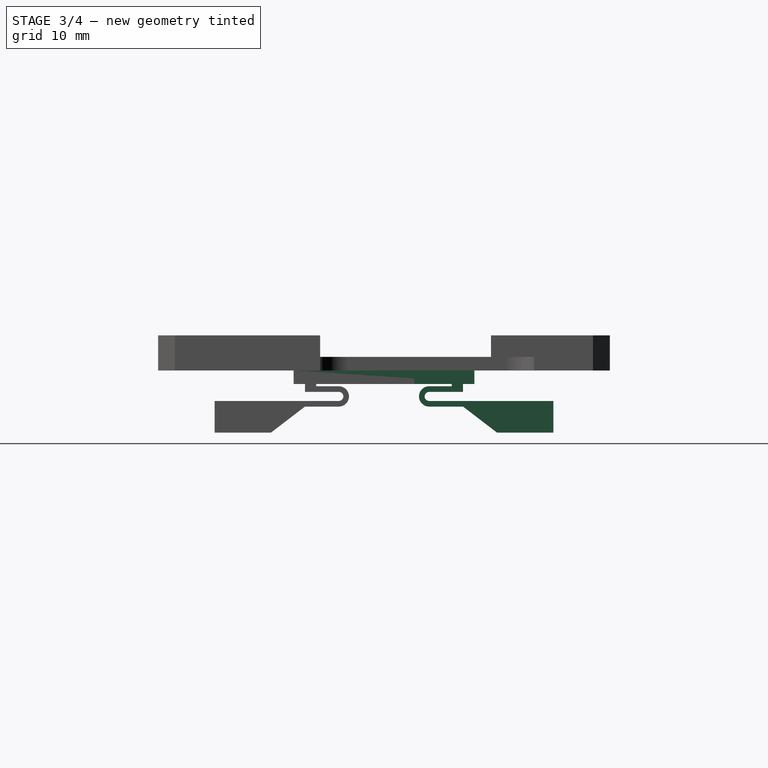
[diagram: stage 3 of 4 — right view after this stage's code; geometry added in this stage tinted green]
FEATURE [PartDesign::Mirrored] Mirrored003
  BaseFeature = -> Pad016
  MirrorPlane = -> Sketch021 [V_Axis]
  Originals = -> [Pad016]
  Placement = pos=(0,0,0) rot=(1,1,1;2.0944rad)
  Refine = true
FEATURE [PartDesign::Pocket] Pocket003
  BaseFeature = -> Mirrored003
  Direction = (0,0,-1)
  Length = 5
  Length2 = 5
  Placement = pos=(0,0,0) rot=(1,1,1;2.0944rad)
  Profile = -> Sketch
  ReferenceAxis = -> Sketch [N_Axis]
  Reversed = true
  Type = 0
FEATURE [PartDesign::Pocket] Pocket004
  BaseFeature = -> Pocket003
  Direction = (0,0,-1)
  Length = 4.8
  Length2 = 5
  Placement = pos=(0,0,0) rot=(1,1,1;2.0944rad)
  Profile = -> Sketch022
  ReferenceAxis = -> Sketch022 [N_Axis]
  Reversed = true
  Type = 0
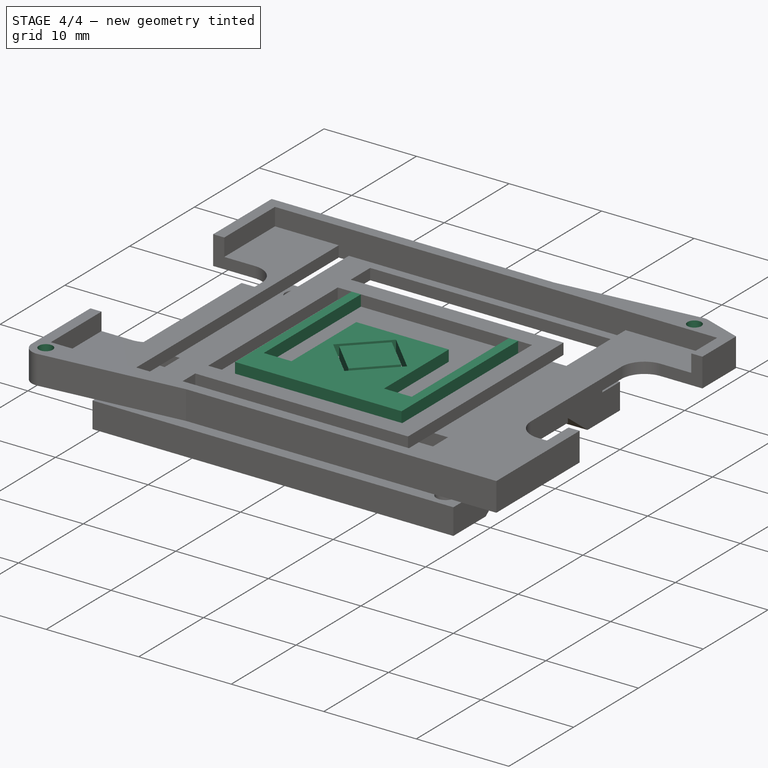
[diagram: stage 4 of 4 — iso view after this stage's code; geometry added in this stage tinted green]
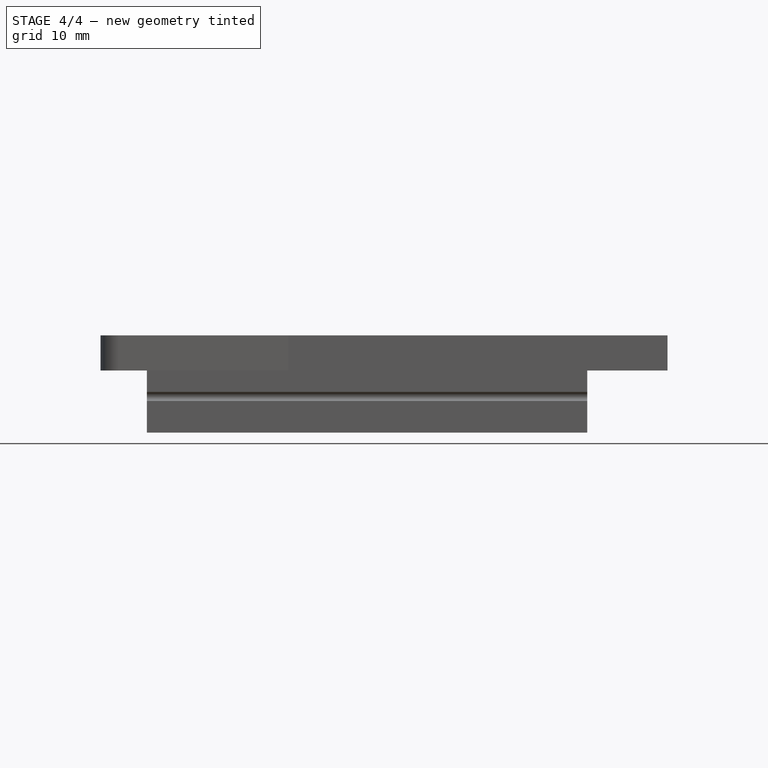
[diagram: stage 4 of 4 — front view after this stage's code; geometry added in this stage tinted green]
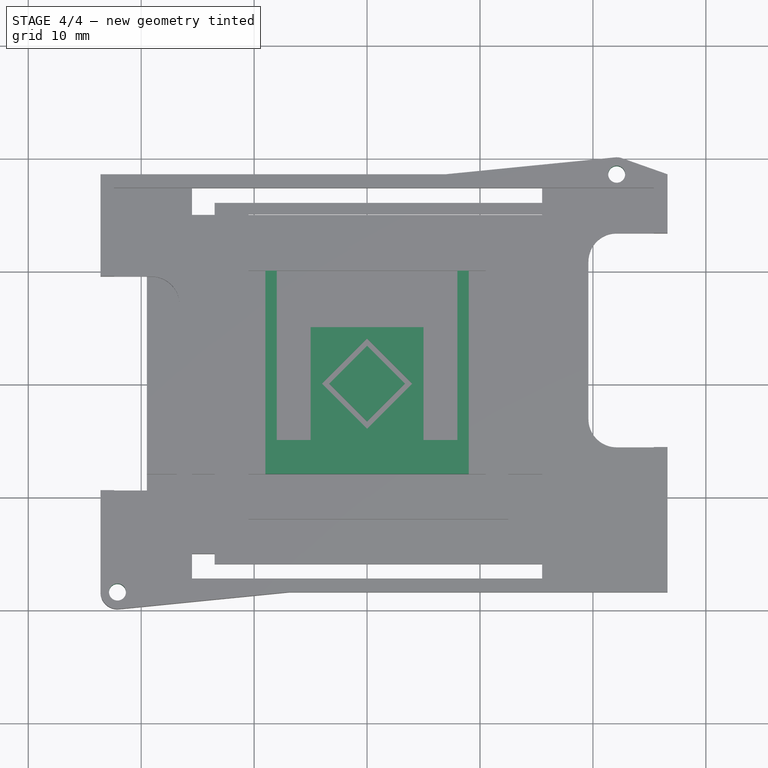
[diagram: stage 4 of 4 — top view after this stage's code; geometry added in this stage tinted green]
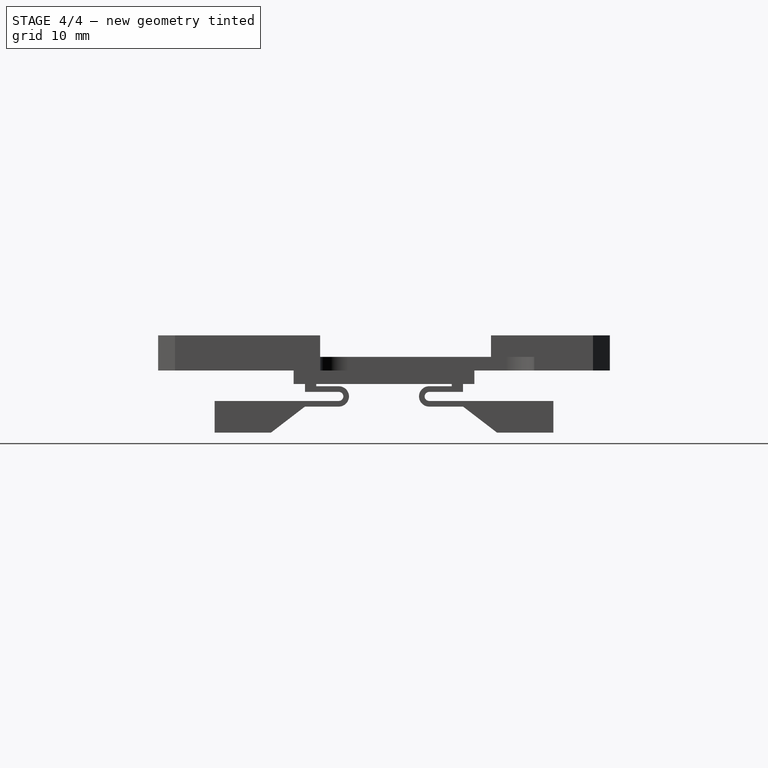
[diagram: stage 4 of 4 — right view after this stage's code; geometry added in this stage tinted green]
FEATURE [PartDesign::Pad] Pad015
  BaseFeature = -> Pad
  Direction = (0,0,1)
  Length = 1.2
  Length2 = 10
  Placement = pos=(0,0,5.5) rot=(0,0,1;0rad)
  Profile = -> Sketch020
  ReferenceAxis = -> Sketch020 [N_Axis]
  Refine = true
  Type = 0
FEATURE [PartDesign::Pocket] Pocket
  BaseFeature = -> Pad015
  Direction = (0,0,-1)
  Length = 2
  Length2 = 5
  Midplane = true
  Placement = pos=(0,0,5.5) rot=(0,0,1;0rad)
  Profile = -> Sketch013
  ReferenceAxis = -> Sketch013 [N_Axis]
  Type = 1
FEATURE [PartDesign::Pad] Pad013
  BaseFeature = -> Pocket004
  Direction = (0,0,1)
  Length = 1.2
  Length2 = 10
  Placement = pos=(0,0,0) rot=(1,1,1;2.0944rad)
  Profile = -> Sketch018
  ReferenceAxis = -> Sketch018 [N_Axis]
  Refine = true
  Type = 0
FEATURE [PartDesign::Body] Body002  label="PLASTIC-TEK1-DISPLAY-INTERFACE_bottom_part001"
  Group = -> [Sketch015,DatumPlane003,Pad016,Mirrored003,Pocket003,Sketch022,Pocket004,Pad013,Sketch,Sketch018,Sketch021]
  Origin = -> Origin002
  Tip = -> Pocket004
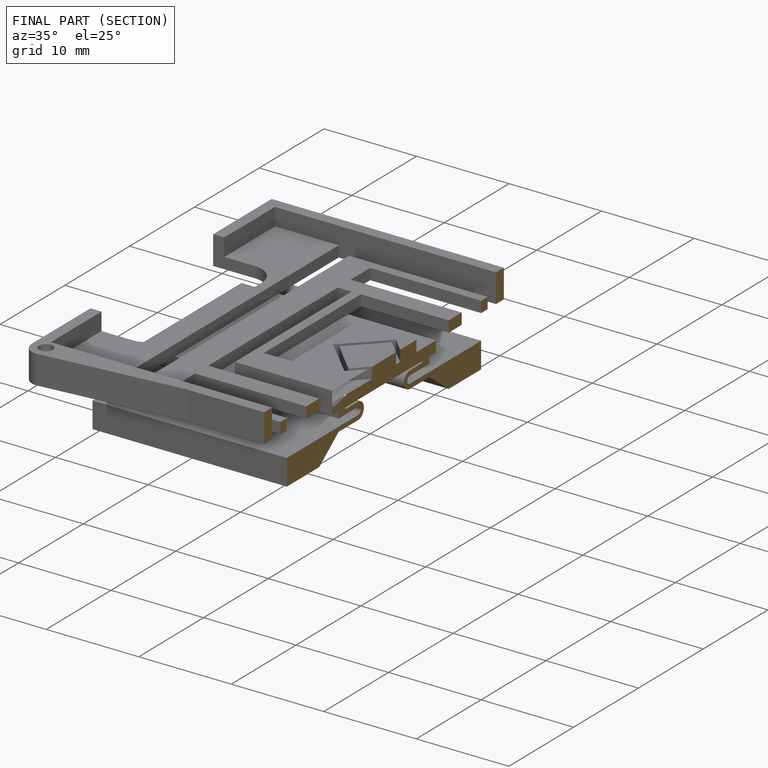
[diagram: finished part — half-section view (interior)]
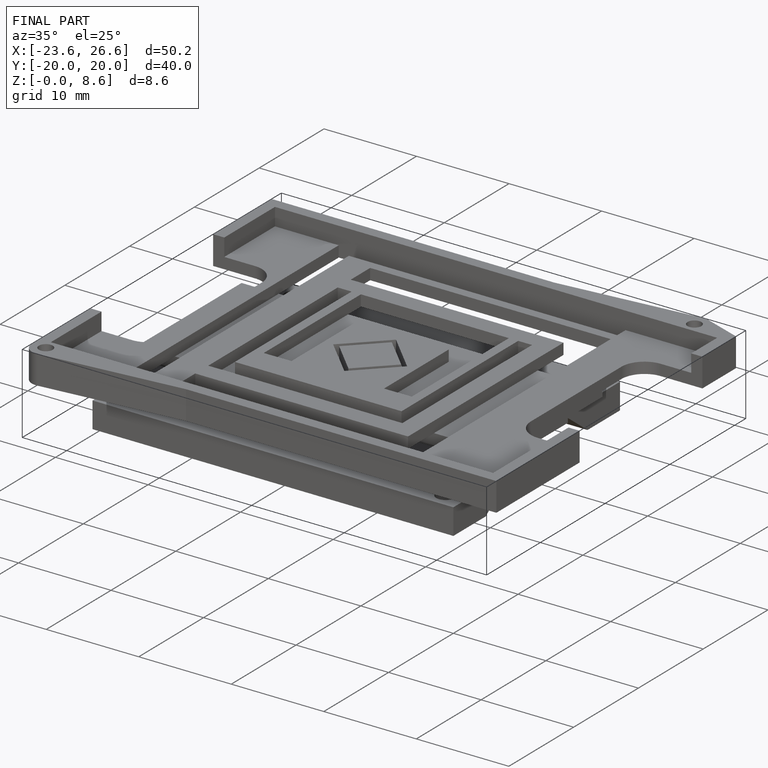
[diagram: finished part — iso view with bounding-box wireframe]
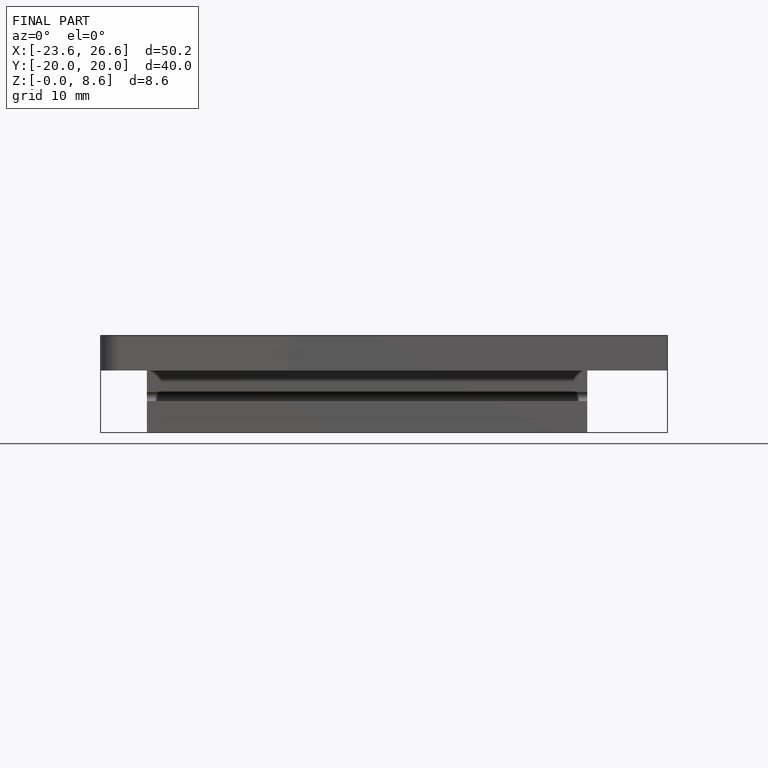
[diagram: finished part — front view with bounding-box wireframe]
